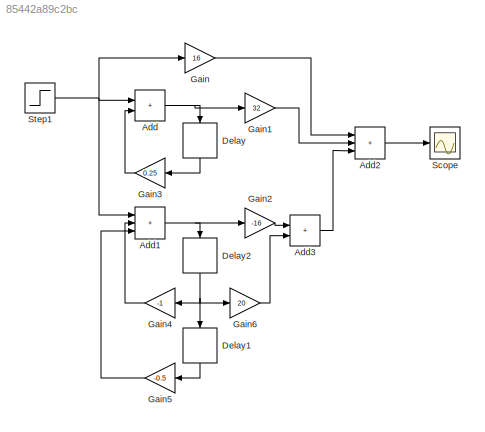
MODEL slx_85442a89c2bc
KIND model
CONFIG AbsTol = auto
CONFIG EnableMultiTasking = off
CONFIG FixedStep = auto
CONFIG MaxStep = auto
CONFIG MinStep = auto
CONFIG RelTol = 1e-3
CONFIG SampleTimeConstraint = Unconstrained
CONFIG SolverName = VariableStepAuto
CONFIG StartTime = 0.0
CONFIG StopTime = 10.0
BLOCK [Sum] Add
  IconShape = rectangular
BLOCK [Sum] Add1
  IconShape = rectangular
  Inputs = +++
BLOCK [Sum] Add2
  IconShape = rectangular
  Inputs = +++
BLOCK [Sum] Add3
  IconShape = rectangular
BLOCK [Delay] Delay
  DelayLength = 1
  InputPortMap = u0
  NameLocation = left
BLOCK [Delay] Delay1
  DelayLength = 1
  InputPortMap = u0
  NameLocation = left
BLOCK [Delay] Delay2
  DelayLength = 1
  InputPortMap = u0
  NameLocation = left
BLOCK [Gain] Gain
  Gain = 16
BLOCK [Gain] Gain1
  Gain = 32
BLOCK [Gain] Gain2
  Gain = -16
BLOCK [Gain] Gain3
  Gain = 0.25
  NameLocation = top
BLOCK [Gain] Gain4
  Gain = -1
  NameLocation = top
BLOCK [Gain] Gain5
  Gain = -0.5
  NameLocation = top
BLOCK [Gain] Gain6
  Gain = 20
BLOCK [Scope] Scope
  Floating = off
  NumInputPorts = 1
  ScopeSpecificationString = Simulink.scopes.TimeScopeBlockCfg('CurrentConfiguration', extmgr.ConfigurationSet(extmgr.Configuration('Core','General UI',true),extmgr.Configuration('Core','Source UI',true),extmgr.Configuration('Sources','WiredSimulink',true),extmgr.Configuration('Visuals','Time Domain',true,'SerializedDisplays',{struct('MinYLimReal','-9.5','MaxYLimReal','85.5','YLabelReal','','MinYLimMag','0.00000','MaxYLimMag'...<+1332ch>
BLOCK [Step] Step1
  SampleTime = 0
NET Add1:1 -> Delay2:1, Gain2:1
LINE Add2:1 -> Scope:1
LINE Add3:1 -> Add2:3
NET Add:1 -> Delay:1, Gain1:1
LINE Delay1:1 -> Gain5:1
NET Delay2:1 -> Delay1:1, Gain4:1, Gain6:1
LINE Delay:1 -> Gain3:1
LINE Gain1:1 -> Add2:2
LINE Gain2:1 -> Add3:1
LINE Gain3:1 -> Add:2
LINE Gain4:1 -> Add1:2
LINE Gain5:1 -> Add1:3
LINE Gain6:1 -> Add3:2
LINE Gain:1 -> Add2:1
NET Step1:1 -> Add1:1, Add:1, Gain:1
note: NET lines group one-source signal fan-out (src -> all destinations, sorted); 1:1 wires keep LINE
